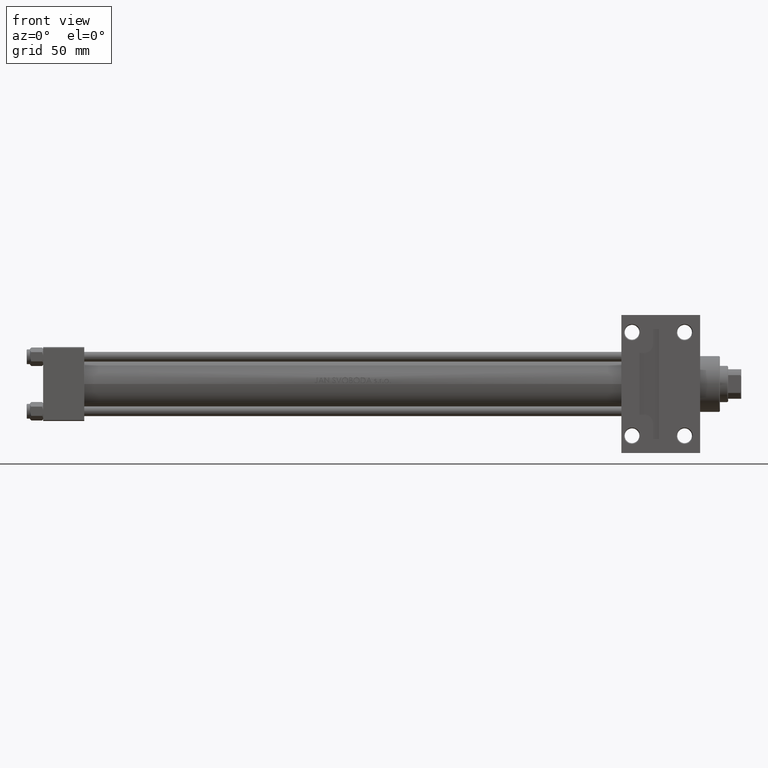
[diagram: clean part render]
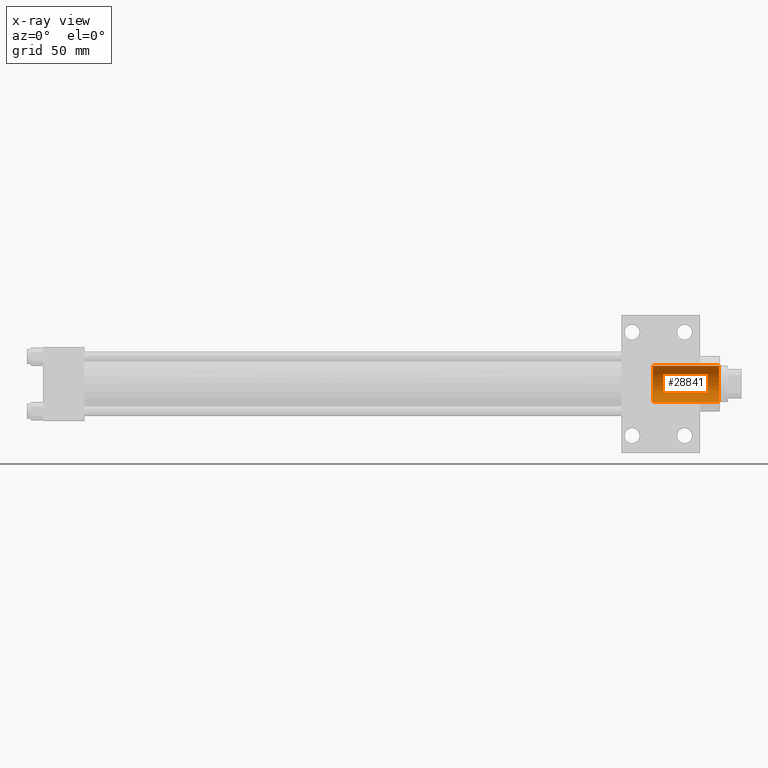
[diagram: x-ray — body ghosted, one internal face saturated and labeled with its STEP entity id]
A machine part, front view, then the same camera in x-ray: the body is ghosted and one INTERNAL B-rep face — a face not visible from any outside direction — is saturated and labeled: STEP entity #28841.
In plain terms, the highlighted cylindrical surface (edge-blend (fillet) strip) has radius 11 mm, axis along (1, 0, 0).
Its self-contained STEP definition (entity closure, byte-faithful):
#1000 = EDGE_CURVE ( 'NONE', #2197, #31395, #45795, .T. ) ;
#1902 = CARTESIAN_POINT ( 'NONE',  ( -11.00000000000000000, 1.347111479062088405E-15, -31.11269837220809364 ) ) ;
#2197 = VERTEX_POINT ( 'NONE', #6000 ) ;
#3428 = DIRECTION ( 'NONE',  ( -0.000000000000000000, -0.000000000000000000, -1.000000000000000000 ) ) ;
#5319 = DIRECTION ( 'NONE',  ( -0.000000000000000000, -0.000000000000000000, -1.000000000000000000 ) ) ;
#6000 = CARTESIAN_POINT ( 'NONE',  ( 11.00000000000000000, 0.000000000000000000, 0.000000000000000000 ) ) ;
#6655 = FACE_OUTER_BOUND ( 'NONE', #18204, .T. ) ;
#7365 = DIRECTION ( 'NONE',  ( 1.000000000000000000, 0.000000000000000000, 0.000000000000000000 ) ) ;
#7600 = CYLINDRICAL_SURFACE ( 'NONE', #13325, 11.00000000000000000 ) ;
#7878 = VECTOR ( 'NONE', #23403, 1000.000000000000000 ) ;
#12110 = ORIENTED_EDGE ( 'NONE', *, *, #28320, .T. ) ;
#13325 = AXIS2_PLACEMENT_3D ( 'NONE', #17999, #43786, #7365 ) ;
#13774 = VECTOR ( 'NONE', #22472, 1000.000000000000000 ) ;
#13899 = CARTESIAN_POINT ( 'NONE',  ( -11.00000000000000000, 1.347111479062088405E-15, 0.000000000000000000 ) ) ;
#14499 = CARTESIAN_POINT ( 'NONE',  ( 11.00000000000000000, 0.000000000000000000, -31.11269837220809364 ) ) ;
#16642 = CARTESIAN_POINT ( 'NONE',  ( 0.000000000000000000, 0.000000000000000000, 40.20000000000000284 ) ) ;
#17293 = AXIS2_PLACEMENT_3D ( 'NONE', #36486, #3428, #29246 ) ;
#17999 = CARTESIAN_POINT ( 'NONE',  ( 0.000000000000000000, 0.000000000000000000, -31.11269837220809364 ) ) ;
#18204 = EDGE_LOOP ( 'NONE', ( #38330, #12110, #36210, #18214 ) ) ;
#18214 = ORIENTED_EDGE ( 'NONE', *, *, #40287, .F. ) ;
#20011 = LINE ( 'NONE', #1902, #7878 ) ;
#22472 = DIRECTION ( 'NONE',  ( -0.000000000000000000, -0.000000000000000000, 1.000000000000000000 ) ) ;
#23403 = DIRECTION ( 'NONE',  ( -0.000000000000000000, -0.000000000000000000, 1.000000000000000000 ) ) ;
#27677 = CIRCLE ( 'NONE', #43823, 11.00000000000000000 ) ;
#28295 = VERTEX_POINT ( 'NONE', #38570 ) ;
#28320 = EDGE_CURVE ( 'NONE', #31395, #36772, #20011, .T. ) ;
#28841 = ADVANCED_FACE ( 'NONE', ( #6655 ), #7600, .F. ) ;
#29246 = DIRECTION ( 'NONE',  ( 1.000000000000000000, 0.000000000000000000, 0.000000000000000000 ) ) ;
#31395 = VERTEX_POINT ( 'NONE', #13899 ) ;
#36210 = ORIENTED_EDGE ( 'NONE', *, *, #40383, .F. ) ;
#36486 = CARTESIAN_POINT ( 'NONE',  ( 0.000000000000000000, 0.000000000000000000, 0.000000000000000000 ) ) ;
#36772 = VERTEX_POINT ( 'NONE', #45094 ) ;
#37178 = LINE ( 'NONE', #14499, #13774 ) ;
#38330 = ORIENTED_EDGE ( 'NONE', *, *, #1000, .T. ) ;
#38570 = CARTESIAN_POINT ( 'NONE',  ( 11.00000000000000000, 0.000000000000000000, 40.20000000000000284 ) ) ;
#40287 = EDGE_CURVE ( 'NONE', #2197, #28295, #37178, .T. ) ;
#40383 = EDGE_CURVE ( 'NONE', #28295, #36772, #27677, .T. ) ;
#41506 = DIRECTION ( 'NONE',  ( 1.000000000000000000, 0.000000000000000000, 0.000000000000000000 ) ) ;
#43786 = DIRECTION ( 'NONE',  ( -0.000000000000000000, -0.000000000000000000, 1.000000000000000000 ) ) ;
#43823 = AXIS2_PLACEMENT_3D ( 'NONE', #16642, #5319, #41506 ) ;
#45094 = CARTESIAN_POINT ( 'NONE',  ( -11.00000000000000000, 1.347111479062088405E-15, 40.20000000000000284 ) ) ;
#45795 = CIRCLE ( 'NONE', #17293, 11.00000000000000000 ) ;